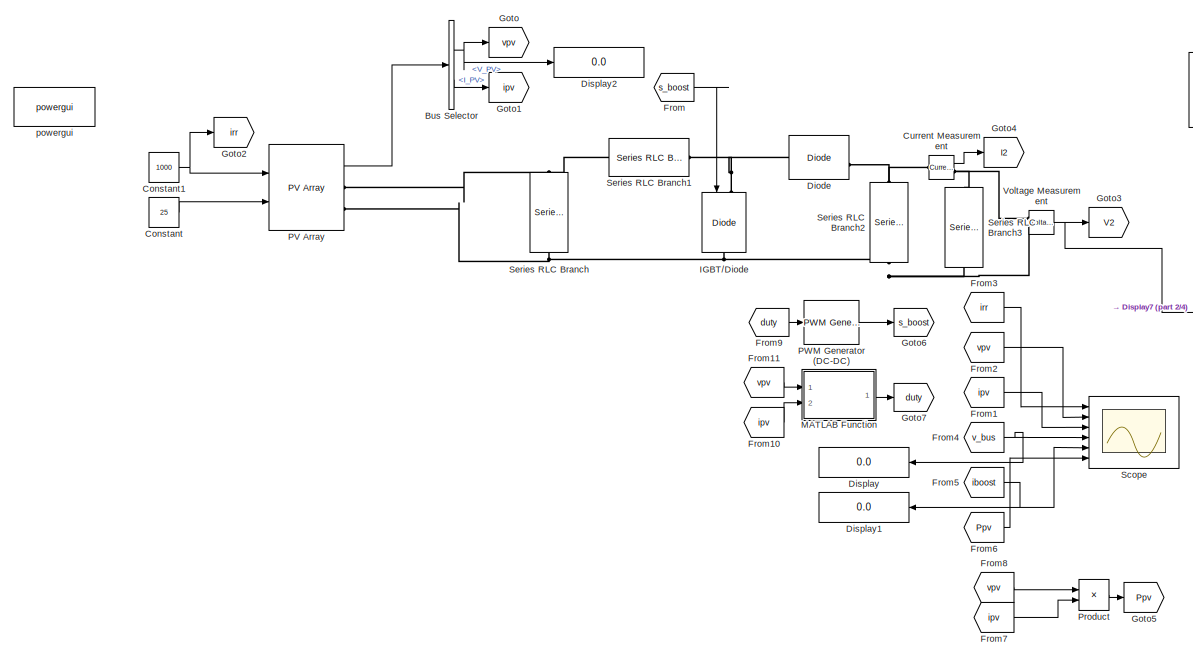
[diagram: root canvas - part 1/4, top left region]
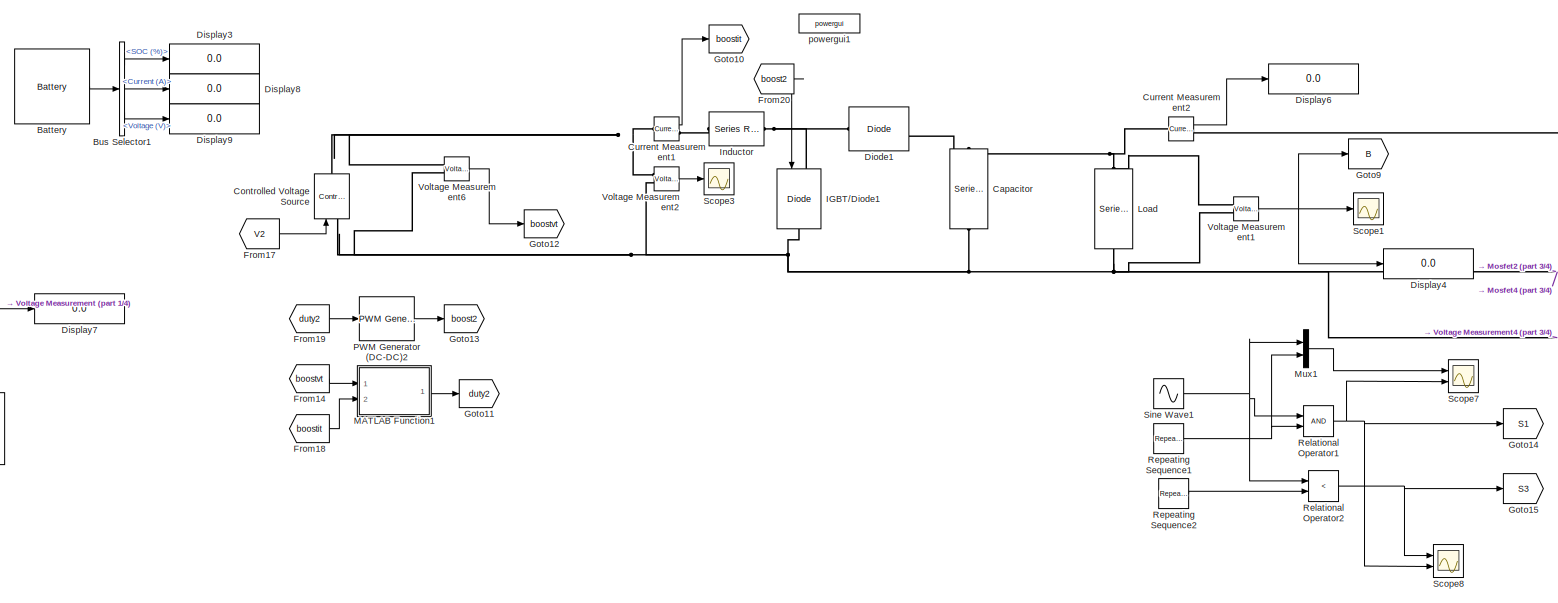
[diagram: root canvas - part 2/4, top center region]
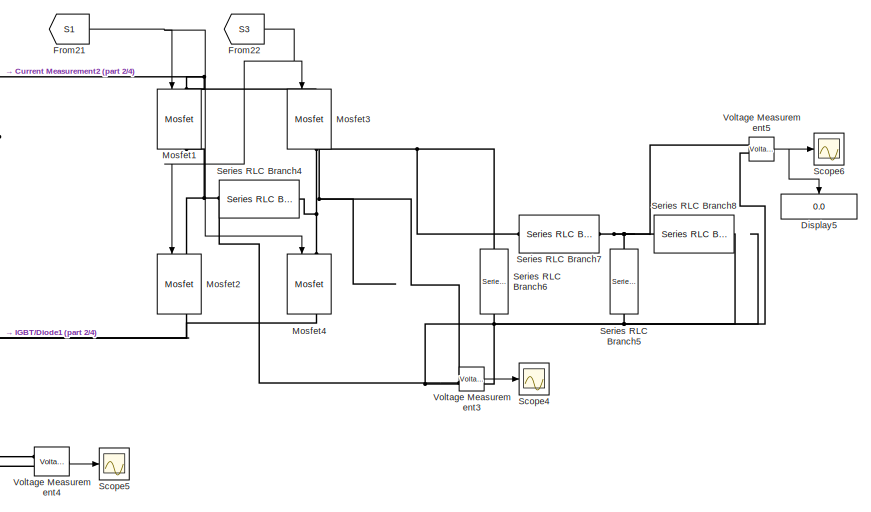
[diagram: root canvas - part 3/4, top right region]
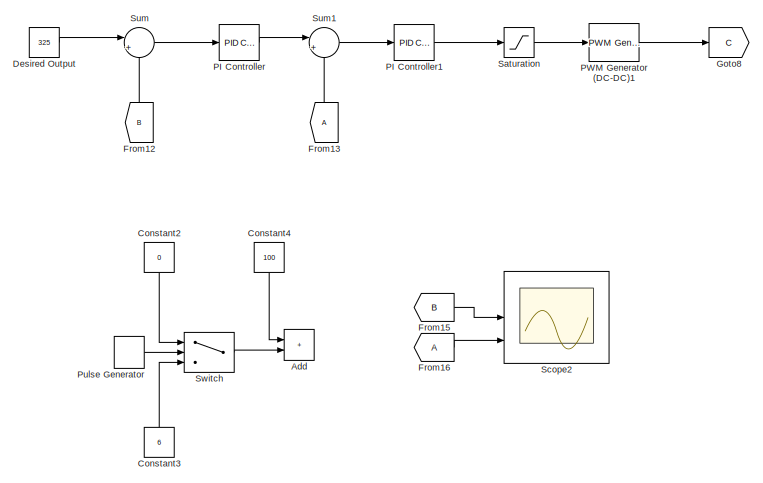
[diagram: root canvas - part 4/4, bottom center region]
MODEL slx_b54285faaa5b
KIND model
CONFIG AbsTol = auto
CONFIG EnableMultiTasking = off
CONFIG FixedStep = auto
CONFIG MaxStep = auto
CONFIG MinStep = auto
CONFIG RelTol = 1e-3
CONFIG SampleTimeConstraint = Unconstrained
CONFIG Solver = VariableStepAuto
CONFIG SolverName = VariableStepAuto
CONFIG StartTime = 0.0
CONFIG StopTime = 5
BLOCK [Sum] Add
  IconShape = rectangular
  Ports = [2, 1]
BLOCK [Reference] Battery  REF=electricdrivelib/Extra Sources/Battery
  Ports = [0, 1, 0, 0, 0, 2]
  SourceBlock = electricdrivelib/Extra Sources/Battery
  SourceProductBaseCode = PS
  SourceType = Battery
BLOCK [BusSelector] Bus Selector
  OutputSignals = V_PV,I_PV
  Ports = [1, 2]
BLOCK [BusSelector] Bus Selector1
  OutputSignals = SOC (%),Current (A),Voltage (V)
  Ports = [1, 3]
BLOCK [Reference] Capacitor   REF=powerlib/Elements/Series RLC Branch
  NameLocation = left
  Ports = [0, 0, 0, 0, 0, 1, 1]
  SourceBlock = powerlib/Elements/Series RLC Branch
  SourceProductBaseCode = PS
  SourceType = Series RLC Branch
BLOCK [Constant] Constant
  Value = 25
BLOCK [Constant] Constant1
  Value = 1000
BLOCK [Constant] Constant2
  NameLocation = left
  Value = 0
BLOCK [Constant] Constant3
  NameLocation = right
  Value = 6
BLOCK [Constant] Constant4
  NameLocation = left
  Value = 100
BLOCK [Reference] Controlled Voltage Source  REF=powerlib/Electrical
Sources/Controlled Voltage Source
  NameLocation = right
  Ports = [1, 0, 0, 0, 0, 1, 1]
  SourceBlock = powerlib/Electrical\nSources/Controlled Voltage Source
  SourceProductBaseCode = PS
  SourceType = Controlled Voltage Source
BLOCK [Reference] Current Measurement  REF=powerlib/Measurements/Current Measurement
  Ports = [0, 1, 0, 0, 0, 1, 1]
  SourceBlock = powerlib/Measurements/Current Measurement
  SourceProductBaseCode = PS
  SourceType = Current Measurement
  UserDataPersistent = on
BLOCK [Reference] Current Measurement1  REF=powerlib/Measurements/Current Measurement
  Ports = [0, 1, 0, 0, 0, 1, 1]
  SourceBlock = powerlib/Measurements/Current Measurement
  SourceProductBaseCode = PS
  SourceType = Current Measurement
  UserDataPersistent = on
BLOCK [Reference] Current Measurement2  REF=powerlib/Measurements/Current Measurement
  Ports = [0, 1, 0, 0, 0, 1, 1]
  SourceBlock = powerlib/Measurements/Current Measurement
  SourceProductBaseCode = PS
  SourceType = Current Measurement
  UserDataPersistent = on
BLOCK [Constant] Desired Output
  Value = 325
BLOCK [Reference] Diode  REF=powerlib/Power
Electronics/Diode
  Ports = [0, 1, 0, 0, 0, 1, 1]
  SourceBlock = powerlib/Power\nElectronics/Diode
  SourceProductBaseCode = PS
  SourceType = Diode
BLOCK [Reference] Diode1  REF=powerlib/Power
Electronics/Diode
  Ports = [0, 1, 0, 0, 0, 1, 1]
  SourceBlock = powerlib/Power\nElectronics/Diode
  SourceProductBaseCode = PS
  SourceType = Diode
BLOCK [Display] Display
  Decimation = 1
  NameLocation = top
  Ports = [1]
BLOCK [Display] Display1
  Decimation = 1
  NameLocation = top
  Ports = [1]
BLOCK [Display] Display2
  Decimation = 1
  Ports = [1]
BLOCK [Display] Display3
  Decimation = 1
  Ports = [1]
BLOCK [Display] Display4
  Decimation = 1
  Ports = [1]
BLOCK [Display] Display5
  Decimation = 1
  NameLocation = left
  Ports = [1]
BLOCK [Display] Display6
  Decimation = 1
  Ports = [1]
BLOCK [Display] Display7
  Decimation = 1
  Ports = [1]
BLOCK [Display] Display8
  Decimation = 1
  Ports = [1]
BLOCK [Display] Display9
  Decimation = 1
  Ports = [1]
BLOCK [From] From
  GotoTag = s_boost
  TagVisibility = global
BLOCK [From] From1
  GotoTag = ipv
  TagVisibility = global
BLOCK [From] From10
  GotoTag = ipv
  TagVisibility = global
BLOCK [From] From11
  GotoTag = vpv
  TagVisibility = global
BLOCK [From] From12
  GotoTag = B
  NameLocation = right
BLOCK [From] From13
  NameLocation = right
BLOCK [From] From14
  GotoTag = boostvt
BLOCK [From] From15
  GotoTag = B
BLOCK [From] From16
BLOCK [From] From17
  GotoTag = V2
BLOCK [From] From18
  GotoTag = boostit
BLOCK [From] From19
  GotoTag = duty2
BLOCK [From] From2
  GotoTag = vpv
  TagVisibility = global
BLOCK [From] From20
  GotoTag = boost2
BLOCK [From] From21
  GotoTag = S1
BLOCK [From] From22
  GotoTag = S3
BLOCK [From] From3
  GotoTag = irr
  TagVisibility = global
BLOCK [From] From4
  GotoTag = v_bus
BLOCK [From] From5
  GotoTag = iboost
BLOCK [From] From6
  GotoTag = Ppv
BLOCK [From] From7
  GotoTag = ipv
  TagVisibility = global
BLOCK [From] From8
  GotoTag = vpv
  TagVisibility = global
BLOCK [From] From9
  GotoTag = duty
  TagVisibility = global
BLOCK [Goto] Goto
  GotoTag = vpv
  TagVisibility = global
BLOCK [Goto] Goto1
  GotoTag = ipv
  TagVisibility = global
BLOCK [Goto] Goto10
  GotoTag = boostit
BLOCK [Goto] Goto11
  GotoTag = duty2
BLOCK [Goto] Goto12
  GotoTag = boostvt
BLOCK [Goto] Goto13
  GotoTag = boost2
BLOCK [Goto] Goto14
  GotoTag = S1
BLOCK [Goto] Goto15
  GotoTag = S3
BLOCK [Goto] Goto2
  GotoTag = irr
  TagVisibility = global
BLOCK [Goto] Goto3
  GotoTag = V2
BLOCK [Goto] Goto4
  GotoTag = I2
BLOCK [Goto] Goto5
  GotoTag = Ppv
BLOCK [Goto] Goto6
  GotoTag = s_boost
  TagVisibility = global
BLOCK [Goto] Goto7
  GotoTag = duty
  TagVisibility = global
BLOCK [Goto] Goto8
  GotoTag = C
BLOCK [Goto] Goto9
  GotoTag = B
BLOCK [Reference] IGBT//Diode  REF=powerlib/Power
Electronics/IGBT//Diode
  NameLocation = left
  Ports = [1, 0, 0, 0, 0, 1, 1]
  SourceBlock = powerlib/Power\nElectronics/IGBT//Diode
  SourceProductBaseCode = PS
  SourceType = IGBT/Diode
BLOCK [Reference] IGBT//Diode1  REF=powerlib/Power
Electronics/IGBT//Diode
  NameLocation = left
  Ports = [1, 0, 0, 0, 0, 1, 1]
  SourceBlock = powerlib/Power\nElectronics/IGBT//Diode
  SourceProductBaseCode = PS
  SourceType = IGBT/Diode
BLOCK [Reference] Inductor   REF=powerlib/Elements/Series RLC Branch
  Ports = [0, 0, 0, 0, 0, 1, 1]
  SourceBlock = powerlib/Elements/Series RLC Branch
  SourceProductBaseCode = PS
  SourceType = Series RLC Branch
BLOCK [Reference] Load   REF=powerlib/Elements/Series RLC Branch
  NameLocation = left
  Ports = [0, 0, 0, 0, 0, 1, 1]
  SourceBlock = powerlib/Elements/Series RLC Branch
  SourceProductBaseCode = PS
  SourceType = Series RLC Branch
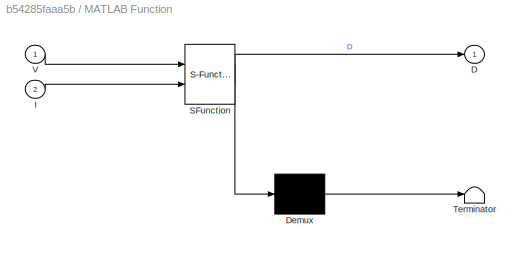
BLOCK [SubSystem] MATLAB Function
  ErrorFcn = Stateflow.Translate.translate
  PermitHierarchicalResolution = ExplicitOnly
  Ports = [2, 1]
  RequestExecContextInheritance = off
  SFBlockType = MATLAB Function
  TreatAsAtomicUnit = on
BLOCK [Demux] MATLAB Function/ Demux 
  Outputs = 1
  Ports = [1, 1]
BLOCK [S-Function] MATLAB Function/ SFunction 
  EnableBusSupport = on
  FunctionName = sf_sfun
  PortCounts = [2 2]
  Ports = [2, 2]
  SFcnIsStateOwnerBlock = off
  SFunctionDeploymentMode = off
  Tag = Stateflow S-Function 2
BLOCK [Terminator] MATLAB Function/ Terminator 
BLOCK [Outport] MATLAB Function/D
BLOCK [Inport] MATLAB Function/I
  Port = 2
BLOCK [Inport] MATLAB Function/V
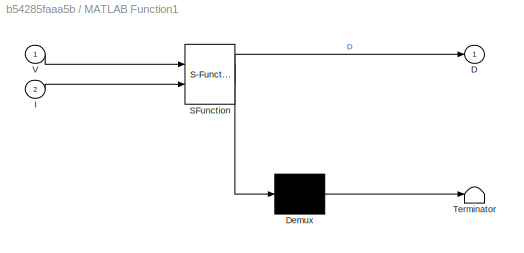
BLOCK [SubSystem] MATLAB Function1
  ErrorFcn = Stateflow.Translate.translate
  PermitHierarchicalResolution = ExplicitOnly
  Ports = [2, 1]
  RequestExecContextInheritance = off
  SFBlockType = MATLAB Function
  TreatAsAtomicUnit = on
BLOCK [Demux] MATLAB Function1/ Demux 
  Outputs = 1
  Ports = [1, 1]
BLOCK [S-Function] MATLAB Function1/ SFunction 
  EnableBusSupport = on
  FunctionName = sf_sfun
  PortCounts = [2 2]
  Ports = [2, 2]
  SFcnIsStateOwnerBlock = off
  SFunctionDeploymentMode = off
  Tag = Stateflow S-Function 1
BLOCK [Terminator] MATLAB Function1/ Terminator 
BLOCK [Outport] MATLAB Function1/D
BLOCK [Inport] MATLAB Function1/I
  Port = 2
BLOCK [Inport] MATLAB Function1/V
BLOCK [Reference] Mosfet1  REF=powerlib/Power
Electronics/Mosfet
  NameLocation = right
  Ports = [1, 1, 0, 0, 0, 1, 1]
  SourceBlock = powerlib/Power\nElectronics/Mosfet
  SourceProductBaseCode = PS
  SourceType = Mosfet
BLOCK [Reference] Mosfet2  REF=powerlib/Power
Electronics/Mosfet
  NameLocation = right
  Ports = [1, 1, 0, 0, 0, 1, 1]
  SourceBlock = powerlib/Power\nElectronics/Mosfet
  SourceProductBaseCode = PS
  SourceType = Mosfet
BLOCK [Reference] Mosfet3  REF=powerlib/Power
Electronics/Mosfet
  NameLocation = right
  Ports = [1, 1, 0, 0, 0, 1, 1]
  SourceBlock = powerlib/Power\nElectronics/Mosfet
  SourceProductBaseCode = PS
  SourceType = Mosfet
BLOCK [Reference] Mosfet4  REF=powerlib/Power
Electronics/Mosfet
  NameLocation = right
  Ports = [1, 1, 0, 0, 0, 1, 1]
  SourceBlock = powerlib/Power\nElectronics/Mosfet
  SourceProductBaseCode = PS
  SourceType = Mosfet
BLOCK [Mux] Mux1
  DisplayOption = bar
  Inputs = 2
  Ports = [2, 1]
BLOCK [Reference] PI Controller  REF=simulink/Continuous/PID Controller
  Ports = [1, 1]
  SourceBlock = simulink/Continuous/PID Controller
  SourceProductBaseCode = SL
  SourceType = PID 1dof
BLOCK [Reference] PI Controller1  REF=simulink/Continuous/PID Controller
  Ports = [1, 1]
  SourceBlock = simulink/Continuous/PID Controller
  SourceProductBaseCode = SL
  SourceType = PID 1dof
BLOCK [Reference] PV Array  REF=re_lib/Solar/PV Array
  Ports = [2, 1, 0, 0, 0, 0, 2]
  SourceBlock = re_lib/Solar/PV Array
  SourceProductBaseCode = PS
  SourceType = PV array
BLOCK [Reference] PWM Generator (DC-DC)  REF=powerlib_meascontrol/Pulse & Signal
Generators/PWM Generator
(DC-DC)
  Ports = [1, 1]
  SourceBlock = powerlib_meascontrol/Pulse & Signal\nGenerators/PWM Generator\n(DC-DC)
  SourceProductBaseCode = PS
  SourceType = PWM Generator (DC-DC)
BLOCK [Reference] PWM Generator (DC-DC)1  REF=powerlib_meascontrol/Pulse & Signal
Generators/PWM Generator
(DC-DC)
  Ports = [1, 1]
  SourceBlock = powerlib_meascontrol/Pulse & Signal\nGenerators/PWM Generator\n(DC-DC)
  SourceProductBaseCode = PS
  SourceType = PWM Generator (DC-DC)
BLOCK [Reference] PWM Generator (DC-DC)2  REF=powerlib_meascontrol/Pulse & Signal
Generators/PWM Generator
(DC-DC)
  Ports = [1, 1]
  SourceBlock = powerlib_meascontrol/Pulse & Signal\nGenerators/PWM Generator\n(DC-DC)
  SourceProductBaseCode = PS
  SourceType = PWM Generator (DC-DC)
BLOCK [Product] Product
  Ports = [2, 1]
BLOCK [DiscretePulseGenerator] Pulse Generator
  Ports = [0, 1]
  PulseType = Time based
  PulseWidth = 50
BLOCK [RelationalOperator] Relational Operator1
  InputSameDT = off
  OutDataTypeStr = boolean
  Ports = [2, 1]
  RndMeth = Simplest
BLOCK [RelationalOperator] Relational Operator2
  InputSameDT = off
  Operator = <
  OutDataTypeStr = boolean
  Ports = [2, 1]
  RndMeth = Simplest
BLOCK [Reference] Repeating Sequence1  REF=simulink/Sources/Repeating
Sequence
  Ports = [0, 1]
  SourceBlock = simulink/Sources/Repeating\nSequence
  SourceProductBaseCode = SL
  SourceType = Repeating table
BLOCK [Reference] Repeating Sequence2  REF=simulink/Sources/Repeating
Sequence
  Ports = [0, 1]
  SourceBlock = simulink/Sources/Repeating\nSequence
  SourceProductBaseCode = SL
  SourceType = Repeating table
BLOCK [Saturate] Saturation
  LowerLimit = 0.1
  UpperLimit = 0.9
BLOCK [Scope] Scope
  Floating = off
  NumInputPorts = 6
  Ports = [6]
  ScopeSpecificationString = Simulink.scopes.TimeScopeBlockCfg('CurrentConfiguration', extmgr.ConfigurationSet(extmgr.Configuration('Core','General UI',true,'FigureColor',[1 1 1]),extmgr.Configuration('Core','Source UI',true),extmgr.Configuration('Sources','WiredSimulink',true),extmgr.Configuration('Visuals','Time Domain',true,'SerializedDisplays',{struct('MinYLimReal','900.00000','MaxYLimReal','1100.00000','YLabelReal','','M...<+5139ch>
BLOCK [Scope] Scope1
  Floating = off
  NumInputPorts = 1
  Ports = [1]
  ScopeSpecificationString = Simulink.scopes.TimeScopeBlockCfg('CurrentConfiguration', extmgr.ConfigurationSet(extmgr.Configuration('Core','General UI',true),extmgr.Configuration('Core','Source UI',true),extmgr.Configuration('Sources','WiredSimulink',true,'DataLoggingVariableName','ScopeData1'),extmgr.Configuration('Visuals','Time Domain',true,'SerializedDisplays',{struct('MinYLimReal','-30.05314','MaxYLimReal','270.47828','Y...<+1489ch>
BLOCK [Scope] Scope2
  Floating = off
  NumInputPorts = 3
  Ports = [3]
  ScopeSpecificationString = Simulink.scopes.TimeScopeBlockCfg('CurrentConfiguration', extmgr.ConfigurationSet(extmgr.Configuration('Core','General UI',true),extmgr.Configuration('Core','Source UI',true),extmgr.Configuration('Sources','WiredSimulink',true,'DataLoggingVariableName','ScopeData2'),extmgr.Configuration('Visuals','Time Domain',true,'SerializedDisplays',{struct('MinYLimReal','-60.34105','MaxYLimReal','537.11008','Y...<+1455ch>
BLOCK [Scope] Scope3
  Floating = off
  NumInputPorts = 1
  Ports = [1]
  ScopeSpecificationString = Simulink.scopes.TimeScopeBlockCfg('CurrentConfiguration', extmgr.ConfigurationSet(extmgr.Configuration('Core','General UI',true),extmgr.Configuration('Core','Source UI',true),extmgr.Configuration('Sources','WiredSimulink',true,'DataLoggingVariableName','ScopeData3'),extmgr.Configuration('Visuals','Time Domain',true,'SerializedDisplays',{struct('MinYLimReal','17.00000','MaxYLimReal','37.00000','YLa...<+1484ch>
BLOCK [Scope] Scope4
  Floating = off
  NumInputPorts = 1
  Ports = [1]
  ScopeSpecificationString = Simulink.scopes.TimeScopeBlockCfg('CurrentConfiguration', extmgr.ConfigurationSet(extmgr.Configuration('Core','General UI',true),extmgr.Configuration('Core','Source UI',true),extmgr.Configuration('Sources','WiredSimulink',true,'DataLoggingVariableName','INPUT_V','DataLogging',true),extmgr.Configuration('Visuals','Time Domain',true,'SerializedDisplays',{struct('MinYLimReal','-296.28171','MaxYLimRea...<+1516ch>
BLOCK [Scope] Scope5
  Floating = off
  NumInputPorts = 1
  Ports = [1]
  ScopeSpecificationString = Simulink.scopes.TimeScopeBlockCfg('CurrentConfiguration', extmgr.ConfigurationSet(extmgr.Configuration('Core','General UI',true),extmgr.Configuration('Core','Source UI',true),extmgr.Configuration('Sources','WiredSimulink',true,'DataLoggingVariableName','ScopeData5'),extmgr.Configuration('Visuals','Time Domain',true,'SerializedDisplays',{struct('MinYLimReal','-249.00349','MaxYLimReal','249.00349','...<+1468ch>
BLOCK [Scope] Scope6
  Floating = off
  NumInputPorts = 1
  Ports = [1]
  ScopeSpecificationString = Simulink.scopes.TimeScopeBlockCfg('CurrentConfiguration', extmgr.ConfigurationSet(extmgr.Configuration('Core','General UI',true),extmgr.Configuration('Core','Source UI',true),extmgr.Configuration('Sources','WiredSimulink',true,'DataLoggingVariableName','OUTPUT_V','DataLogging',true),extmgr.Configuration('Visuals','Time Domain',true,'SerializedDisplays',{struct('MinYLimReal','-515.08936','MaxYLimRe...<+1777ch>
BLOCK [Scope] Scope7
  Floating = off
  NumInputPorts = 2
  Ports = [2]
  ScopeSpecificationString = Simulink.scopes.TimeScopeBlockCfg('CurrentConfiguration', extmgr.ConfigurationSet(extmgr.Configuration('Core','General UI',true,'FigureColor',[1 1 1]),extmgr.Configuration('Core','Source UI',true),extmgr.Configuration('Sources','WiredSimulink',true,'DataLoggingVariableName','ScopeData1','DataLogging',true),extmgr.Configuration('Visuals','Time Domain',true,'SerializedDisplays',{struct('MinYLimReal'...<+2571ch>
BLOCK [Scope] Scope8
  Floating = off
  NumInputPorts = 2
  Ports = [2]
  ScopeSpecificationString = Simulink.scopes.TimeScopeBlockCfg('CurrentConfiguration', extmgr.ConfigurationSet(extmgr.Configuration('Core','General UI',true,'FigureColor',[1 1 1]),extmgr.Configuration('Core','Source UI',true),extmgr.Configuration('Sources','WiredSimulink',true,'DataLoggingVariableName','ScopeData2','DataLogging',true),extmgr.Configuration('Visuals','Time Domain',true,'SerializedDisplays',{struct('MinYLimReal'...<+2306ch>
BLOCK [Reference] Series RLC Branch  REF=powerlib/Elements/Series RLC Branch
  NameLocation = left
  Ports = [0, 0, 0, 0, 0, 1, 1]
  SourceBlock = powerlib/Elements/Series RLC Branch
  SourceProductBaseCode = PS
  SourceType = Series RLC Branch
BLOCK [Reference] Series RLC Branch1  REF=powerlib/Elements/Series RLC Branch
  NameLocation = top
  Ports = [0, 0, 0, 0, 0, 1, 1]
  SourceBlock = powerlib/Elements/Series RLC Branch
  SourceProductBaseCode = PS
  SourceType = Series RLC Branch
BLOCK [Reference] Series RLC Branch2  REF=powerlib/Elements/Series RLC Branch
  NameLocation = left
  Ports = [0, 0, 0, 0, 0, 1, 1]
  SourceBlock = powerlib/Elements/Series RLC Branch
  SourceProductBaseCode = PS
  SourceType = Series RLC Branch
BLOCK [Reference] Series RLC Branch3  REF=powerlib/Elements/Series RLC Branch
  NameLocation = left
  Ports = [0, 0, 0, 0, 0, 1, 1]
  SourceBlock = powerlib/Elements/Series RLC Branch
  SourceProductBaseCode = PS
  SourceType = Series RLC Branch
BLOCK [Reference] Series RLC Branch4  REF=powerlib/Elements/Series RLC Branch
  Ports = [0, 0, 0, 0, 0, 1, 1]
  SourceBlock = powerlib/Elements/Series RLC Branch
  SourceProductBaseCode = PS
  SourceType = Series RLC Branch
BLOCK [Reference] Series RLC Branch5  REF=powerlib/Elements/Series RLC Branch
  NameLocation = left
  Ports = [0, 0, 0, 0, 0, 1, 1]
  SourceBlock = powerlib/Elements/Series RLC Branch
  SourceProductBaseCode = PS
  SourceType = Series RLC Branch
BLOCK [Reference] Series RLC Branch6  REF=powerlib/Elements/Series RLC Branch
  NameLocation = left
  Ports = [0, 0, 0, 0, 0, 1, 1]
  SourceBlock = powerlib/Elements/Series RLC Branch
  SourceProductBaseCode = PS
  SourceType = Series RLC Branch
BLOCK [Reference] Series RLC Branch7  REF=powerlib/Elements/Series RLC Branch
  Ports = [0, 0, 0, 0, 0, 1, 1]
  SourceBlock = powerlib/Elements/Series RLC Branch
  SourceProductBaseCode = PS
  SourceType = Series RLC Branch
BLOCK [Reference] Series RLC Branch8  REF=powerlib/Elements/Series RLC Branch
  Ports = [0, 0, 0, 0, 0, 1, 1]
  SourceBlock = powerlib/Elements/Series RLC Branch
  SourceProductBaseCode = PS
  SourceType = Series RLC Branch
BLOCK [Sin] Sine Wave1
  Frequency = 2*pi*50
  Ports = [0, 1]
  SampleTime = 0
BLOCK [Sum] Sum
  Inputs = |+-
  Ports = [2, 1]
BLOCK [Sum] Sum1
  Inputs = |+-
  Ports = [2, 1]
BLOCK [Switch] Switch
  Criteria = u2 > Threshold
  InputSameDT = off
  SaturateOnIntegerOverflow = off
BLOCK [Reference] Voltage Measurement  REF=powerlib/Measurements/Voltage Measurement
  Ports = [0, 1, 0, 0, 0, 2]
  SourceBlock = powerlib/Measurements/Voltage Measurement
  SourceProductBaseCode = PS
  SourceType = Voltage Measurement
  UserDataPersistent = on
BLOCK [Reference] Voltage Measurement1  REF=powerlib/Measurements/Voltage Measurement
  Ports = [0, 1, 0, 0, 0, 2]
  SourceBlock = powerlib/Measurements/Voltage Measurement
  SourceProductBaseCode = PS
  SourceType = Voltage Measurement
  UserDataPersistent = on
BLOCK [Reference] Voltage Measurement2  REF=powerlib/Measurements/Voltage Measurement
  Ports = [0, 1, 0, 0, 0, 2]
  SourceBlock = powerlib/Measurements/Voltage Measurement
  SourceProductBaseCode = PS
  SourceType = Voltage Measurement
  UserDataPersistent = on
BLOCK [Reference] Voltage Measurement3  REF=powerlib/Measurements/Voltage Measurement
  Ports = [0, 1, 0, 0, 0, 2]
  SourceBlock = powerlib/Measurements/Voltage Measurement
  SourceProductBaseCode = PS
  SourceType = Voltage Measurement
  UserDataPersistent = on
BLOCK [Reference] Voltage Measurement4  REF=powerlib/Measurements/Voltage Measurement
  Ports = [0, 1, 0, 0, 0, 2]
  SourceBlock = powerlib/Measurements/Voltage Measurement
  SourceProductBaseCode = PS
  SourceType = Voltage Measurement
  UserDataPersistent = on
BLOCK [Reference] Voltage Measurement5  REF=powerlib/Measurements/Voltage Measurement
  Ports = [0, 1, 0, 0, 0, 2]
  SourceBlock = powerlib/Measurements/Voltage Measurement
  SourceProductBaseCode = PS
  SourceType = Voltage Measurement
  UserDataPersistent = on
BLOCK [Reference] Voltage Measurement6  REF=powerlib/Measurements/Voltage Measurement
  Ports = [0, 1, 0, 0, 0, 2]
  SourceBlock = powerlib/Measurements/Voltage Measurement
  SourceProductBaseCode = PS
  SourceType = Voltage Measurement
  UserDataPersistent = on
BLOCK [Reference] powergui  REF=powerlib/powergui
  Ports = []
  Priority = 1
  SourceBlock = powerlib/powergui
  SourceProductBaseCode = PS
  SourceType = PSB option menu block
BLOCK [Reference] powergui1  REF=powerlib/powergui
  Ports = []
  Priority = 1
  SourceBlock = powerlib/powergui
  SourceProductBaseCode = PS
  SourceType = PSB option menu block
LINE Battery:1 -> Bus Selector1:1
LINE Bus Selector1:1 -> Display3:1
LINE Bus Selector1:2 -> Display8:1
LINE Bus Selector1:3 -> Display9:1
NET Bus Selector:1 -> Display2:1, Goto:1
LINE Bus Selector:2 -> Goto1:1
NET Constant1:1 -> Goto2:1, PV Array:1
LINE Constant2:1 -> Switch:1
LINE Constant3:1 -> Switch:3
LINE Constant4:1 -> Add:1
LINE Constant:1 -> PV Array:2
LINE Current Measurement1:1 -> Goto10:1
LINE Current Measurement2:1 -> Display6:1
LINE Current Measurement:1 -> Goto4:1
LINE Desired Output:1 -> Sum:1
LINE From10:1 -> MATLAB Function:2
LINE From11:1 -> MATLAB Function:1
LINE From12:1 -> Sum:2
LINE From13:1 -> Sum1:2
LINE From14:1 -> MATLAB Function1:1
LINE From15:1 -> Scope2:2
LINE From16:1 -> Scope2:3
LINE From17:1 -> Controlled Voltage Source:1
LINE From18:1 -> MATLAB Function1:2
LINE From19:1 -> PWM Generator (DC-DC)2:1
LINE From1:1 -> Scope:3
LINE From20:1 -> IGBT//Diode1:1
NET From21:1 -> Mosfet1:1, Mosfet4:1
NET From22:1 -> Mosfet2:1, Mosfet3:1
LINE From2:1 -> Scope:2
LINE From3:1 -> Scope:1
NET From4:1 -> Display:1, Scope:4
NET From5:1 -> Display1:1, Scope:5
LINE From6:1 -> Scope:6
LINE From7:1 -> Product:2
LINE From8:1 -> Product:1
LINE From9:1 -> PWM Generator (DC-DC):1
LINE From:1 -> IGBT//Diode:1
LINE MATLAB Function1:1 -> Goto11:1
LINE MATLAB Function:1 -> Goto7:1
LINE Mux1:1 -> Scope7:1
LINE PI Controller1:1 -> Saturation:1
LINE PI Controller:1 -> Sum1:1
LINE PV Array:1 -> Bus Selector:1
LINE PWM Generator (DC-DC)1:1 -> Goto8:1
LINE PWM Generator (DC-DC)2:1 -> Goto13:1
LINE PWM Generator (DC-DC):1 -> Goto6:1
LINE Product:1 -> Goto5:1
LINE Pulse Generator:1 -> Switch:2
NET Relational Operator1:1 -> Goto14:1, Scope7:2, Scope8:2
NET Relational Operator2:1 -> Goto15:1, Scope8:1
NET Repeating Sequence1:1 -> Mux1:2, Relational Operator1:2
LINE Repeating Sequence2:1 -> Relational Operator2:2
LINE Saturation:1 -> PWM Generator (DC-DC)1:1
NET Sine Wave1:1 -> Mux1:1, Relational Operator1:1, Relational Operator2:1
LINE Sum1:1 -> PI Controller1:1
LINE Sum:1 -> PI Controller:1
LINE Switch:1 -> Add:2
NET Voltage Measurement1:1 -> Display4:1, Goto9:1, Scope1:1
LINE Voltage Measurement2:1 -> Scope3:1
LINE Voltage Measurement3:1 -> Scope4:1
LINE Voltage Measurement4:1 -> Scope5:1
NET Voltage Measurement5:1 -> Display5:1, Scope6:1
LINE Voltage Measurement6:1 -> Goto12:1
NET Voltage Measurement:1 -> Display7:1, Goto3:1
PNET net1: Capacitor :LConn1 -- Current Measurement2:LConn1 -- Diode1:RConn1 -- Load :LConn1 -- Voltage Measurement1:LConn1
PNET net2: Capacitor :RConn1 -- Controlled Voltage Source:LConn1 -- IGBT//Diode1:RConn1 -- Load :RConn1 -- Mosfet2:RConn1 -- Mosfet4:RConn1 -- Voltage Measurement1:LConn2 -- Voltage Measurement2:LConn2 -- Voltage Measurement4:LConn2 -- Voltage Measurement6:LConn2
PNET net3: Controlled Voltage Source:RConn1 -- Current Measurement1:LConn1 -- Voltage Measurement2:LConn1 -- Voltage Measurement6:LConn1
PLINE Current Measurement1:RConn1 -- Inductor :LConn1
PNET net4: Current Measurement2:RConn1 -- Mosfet1:LConn1 -- Mosfet3:LConn1 -- Voltage Measurement4:LConn1
PNET net5: Current Measurement:LConn1 -- Diode:RConn1 -- Series RLC Branch2:LConn1
PNET net6: Current Measurement:RConn1 -- Series RLC Branch3:LConn1 -- Voltage Measurement:LConn1
PNET net7: Diode1:LConn1 -- IGBT//Diode1:LConn1 -- Inductor :RConn1
PNET net8: Diode:LConn1 -- IGBT//Diode:LConn1 -- Series RLC Branch1:LConn1
PNET net9: IGBT//Diode:RConn1 -- PV Array:RConn2 -- Series RLC Branch2:RConn1 -- Series RLC Branch3:RConn1 -- Series RLC Branch:RConn1 -- Voltage Measurement:LConn2
PNET net10: Mosfet1:RConn1 -- Mosfet2:LConn1 -- Series RLC Branch4:LConn1 -- Series RLC Branch5:RConn1 -- Series RLC Branch6:RConn1 -- Series RLC Branch8:RConn1 -- Voltage Measurement3:LConn2 -- Voltage Measurement5:LConn2
PNET net11: Mosfet3:RConn1 -- Mosfet4:LConn1 -- Series RLC Branch4:RConn1 -- Series RLC Branch6:LConn1 -- Series RLC Branch7:LConn1 -- Voltage Measurement3:LConn1
PNET net12: PV Array:RConn1 -- Series RLC Branch1:RConn1 -- Series RLC Branch:LConn1
PNET net13: Series RLC Branch5:LConn1 -- Series RLC Branch7:RConn1 -- Series RLC Branch8:LConn1 -- Voltage Measurement5:LConn1
note: NET lines group one-source signal fan-out (src -> all destinations, sorted); 1:1 wires keep LINE; PNET lines group multi-terminal physical nets as a canonical sorted terminal list (undirected conserving connections); 2-terminal nets keep the pairwise PLINE form
CHART MATLAB Function states=1 transitions=1
  STATE_LABEL 'eML_blk_kernel()'
  STATE_LABEL 'SCRIPT:\nfunction D = DutyRatio(V,I)\n\nDmax = 0.6;\nDmin = 0;\nDinit = 0.6;\ndeltaD = 125e-6;\npersistent Vold Pold Dold\n\nif isempty(Vold)\n    Vold = 20;\n    Pold = 100;\n    Dold = Dinit;\nend\n\nP = V*I;\ndV = V-Vold;\ndP = P-Pold;\n\nif dP ~= 0\n    if dP<0\n        if dV<0\n            D = Dold - deltaD;\n        else\n            D = Dold + deltaD;\n        end\n    else\n        if dV<0\n            D = Dold + del...<+167ch>'
CHART MATLAB Function1 states=1 transitions=1
  STATE_LABEL 'eML_blk_kernel()'
  STATE_LABEL 'SCRIPT:\nfunction D = DutyRatio(V,I)\n\nDmax = 0.95;\nDmin = 0;\nDinit = 0.95;\ndeltaD = 125e-6;\npersistent Vold Pold Dold\n\nif isempty(Vold)\n    Vold = 20;\n    Pold = 100;\n    Dold = Dinit;\nend\n\nP = V*I;\ndV = V-Vold;\ndP = P-Pold;\n\nif dP ~= 0\n    if dP<0\n        if dV<0\n            D = Dold - deltaD;\n        else\n            D = Dold + deltaD;\n        end\n    else\n        if dV<0\n            D = Dold + d...<+169ch>'
CHART  states=0 transitions=0
CHART  states=0 transitions=0
